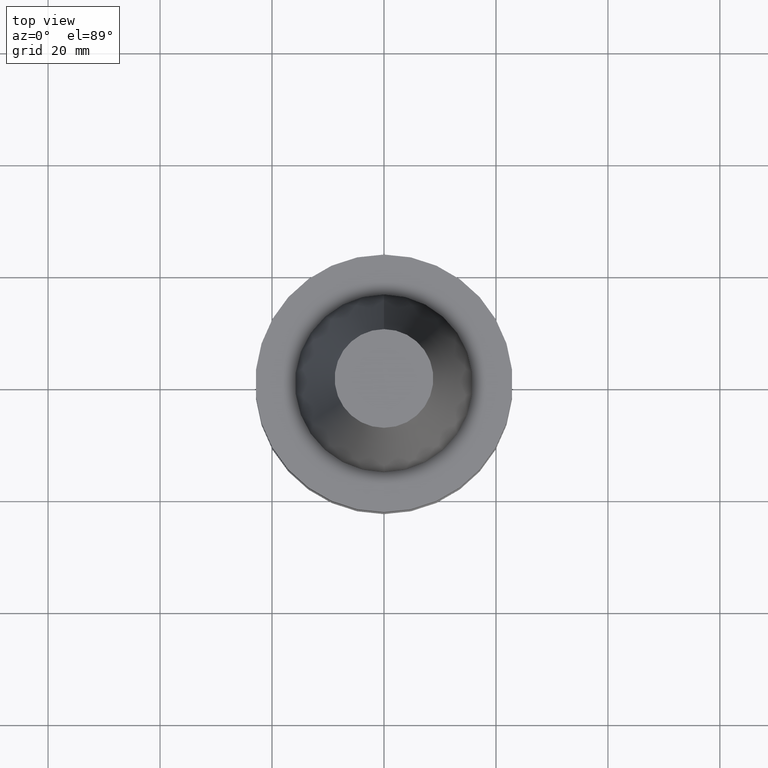
[diagram: clean part render]
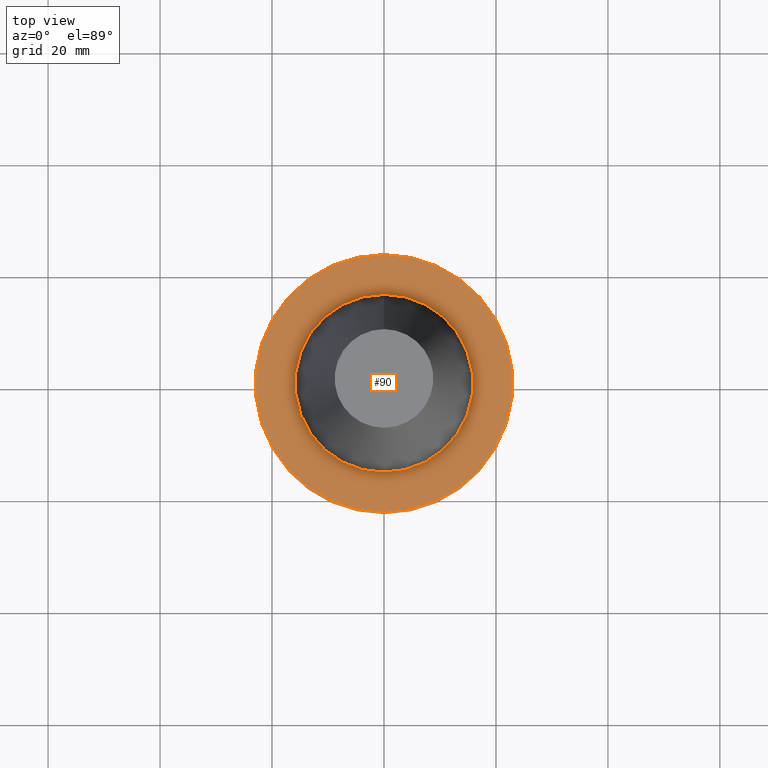
[diagram: same view with one face highlighted and labeled with its STEP entity id]
A machine part, top view. The second image highlights one B-rep face of the part: STEP entity #90.
In plain terms, the highlighted planar face has unit normal (-0, -0, 1).
Its self-contained STEP definition (entity closure, byte-faithful):
#90=ADVANCED_FACE('',(#136,#137),#138,.T.);
#136=FACE_OUTER_BOUND('',#185,.T.);
#137=FACE_BOUND('',#186,.T.);
#138=PLANE('',#187);
#185=EDGE_LOOP('',(#264));
#186=EDGE_LOOP('',(#265));
#187=AXIS2_PLACEMENT_3D('',#266,#267,#268);
#264=ORIENTED_EDGE('',*,*,#289,.F.);
#265=ORIENTED_EDGE('',*,*,#288,.T.);
#266=CARTESIAN_POINT('',(6.12323399573674E-017,19.4375,-0.999999999999998));
#267=DIRECTION('',(-6.12323399573677E-017,-1.22464679914735E-016,1.0));
#268=DIRECTION('',(1.23259516440783E-032,-1.0,-1.22464679914735E-016));
#288=EDGE_CURVE('',#318,#318,#319,.T.);
#289=EDGE_CURVE('',#320,#320,#321,.T.);
#318=VERTEX_POINT('',#350);
#319=CIRCLE('',#351,15.875);
#320=VERTEX_POINT('',#352);
#321=CIRCLE('',#353,23.0);
#350=CARTESIAN_POINT('',(6.12323399573675E-017,15.875,-0.999999999999998));
#351=AXIS2_PLACEMENT_3D('',#396,#397,#398);
#352=CARTESIAN_POINT('',(6.12323399573674E-017,23.0,-0.999999999999997));
#353=AXIS2_PLACEMENT_3D('',#399,#400,#401);
#396=CARTESIAN_POINT('',(6.12323399573677E-017,1.22464679914735E-016,-1.0));
#397=DIRECTION('',(6.12323399573677E-017,1.22464679914735E-016,-1.0));
#398=DIRECTION('',(-1.23259516440783E-032,1.0,1.22464679914735E-016));
#399=CARTESIAN_POINT('',(6.12323399573677E-017,1.22464679914735E-016,-1.0));
#400=DIRECTION('',(6.12323399573677E-017,1.22464679914735E-016,-1.0));
#401=DIRECTION('',(-1.23259516440783E-032,1.0,1.22464679914735E-016));